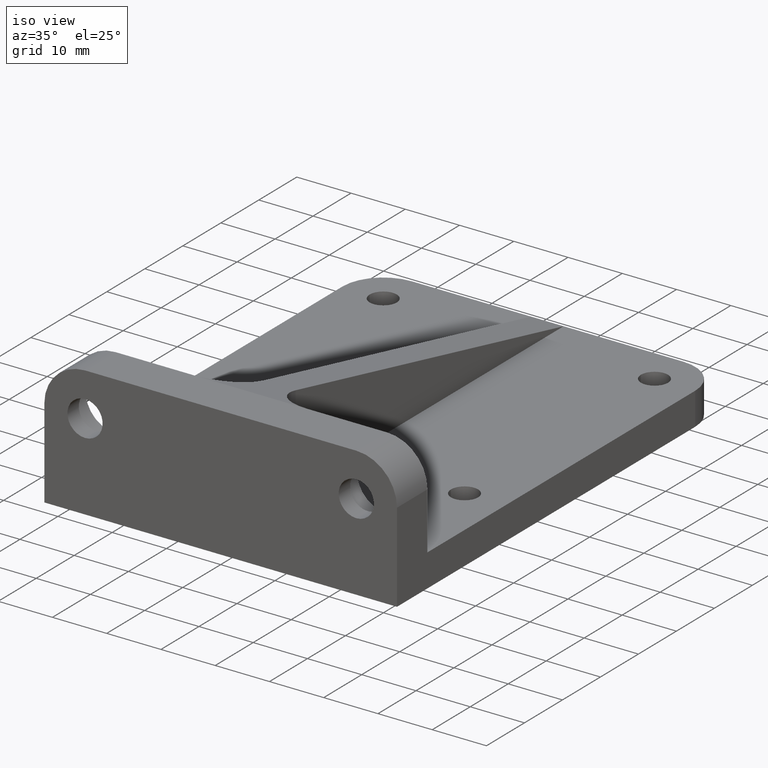
[diagram: clean part render]
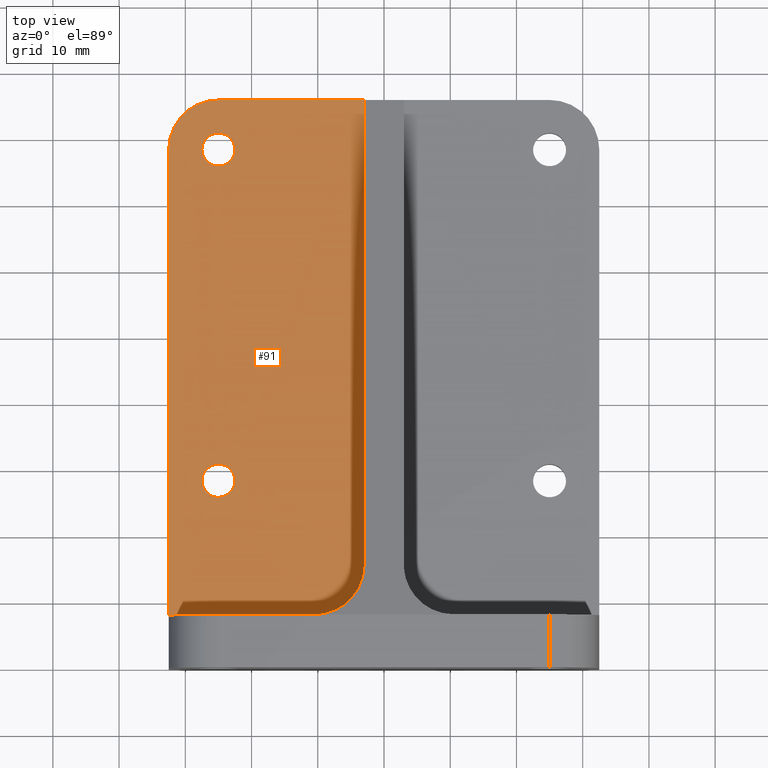
[diagram: tour spotlight — one face highlighted and labeled with its STEP entity id]
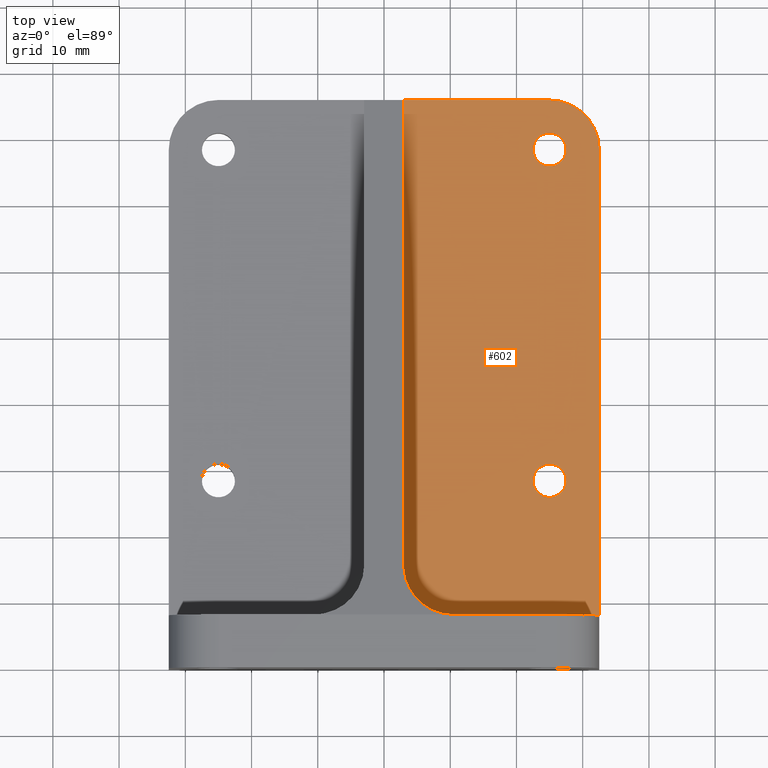
[diagram: tour spotlight — one face highlighted and labeled with its STEP entity id]
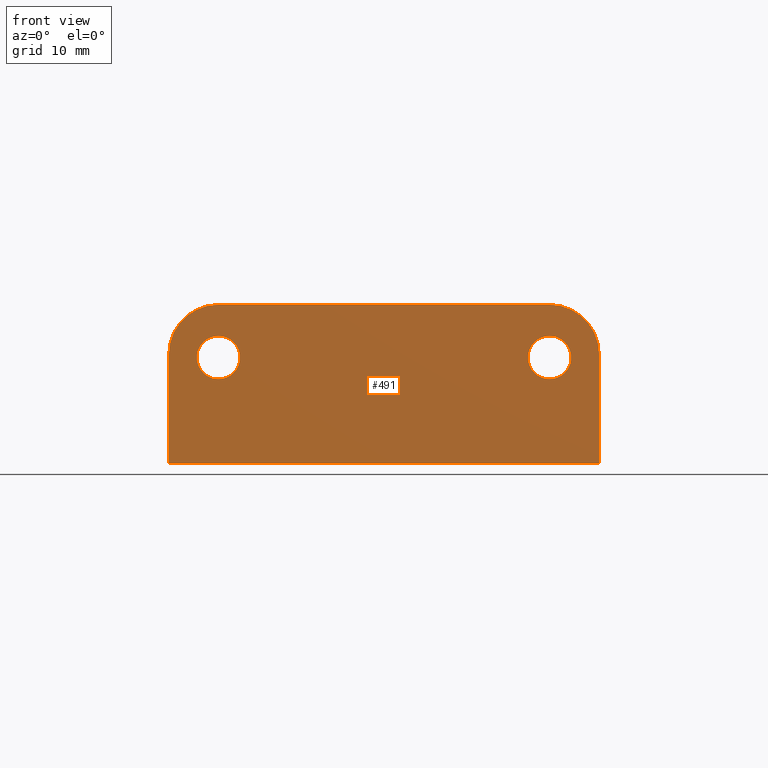
[diagram: tour spotlight — one face highlighted and labeled with its STEP entity id]
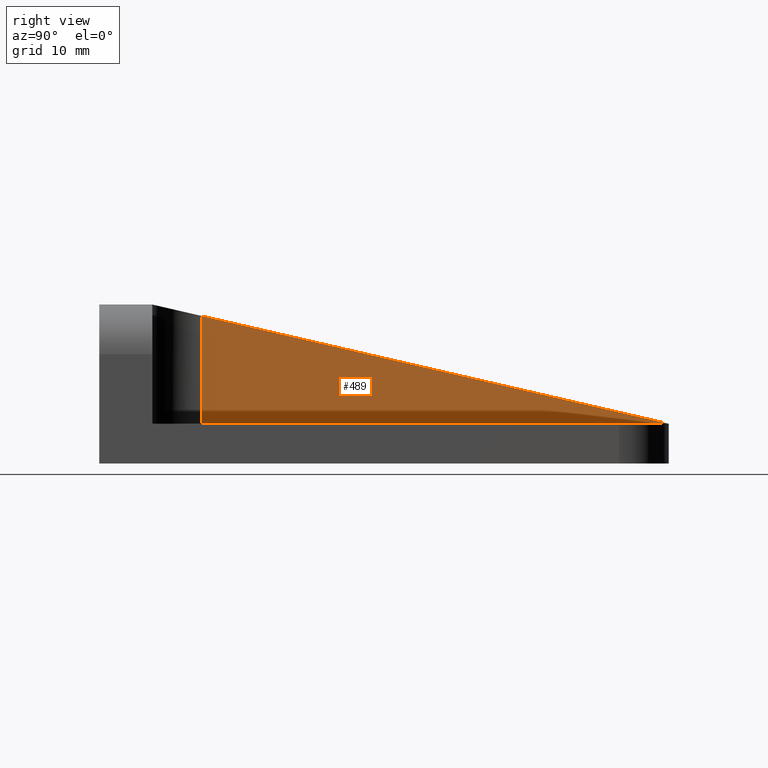
[diagram: tour spotlight — one face highlighted and labeled with its STEP entity id]
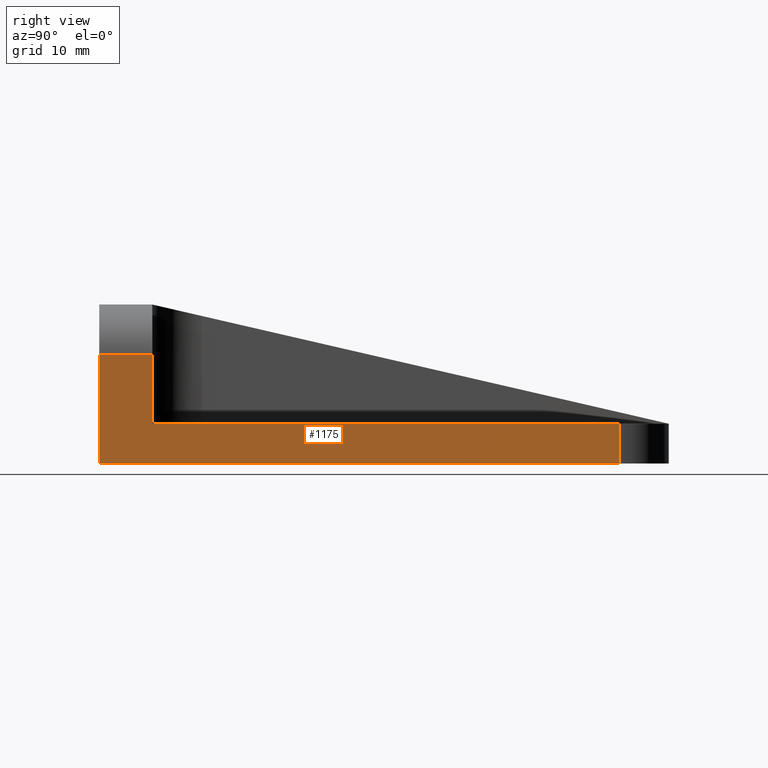
[diagram: tour spotlight — one face highlighted and labeled with its STEP entity id]
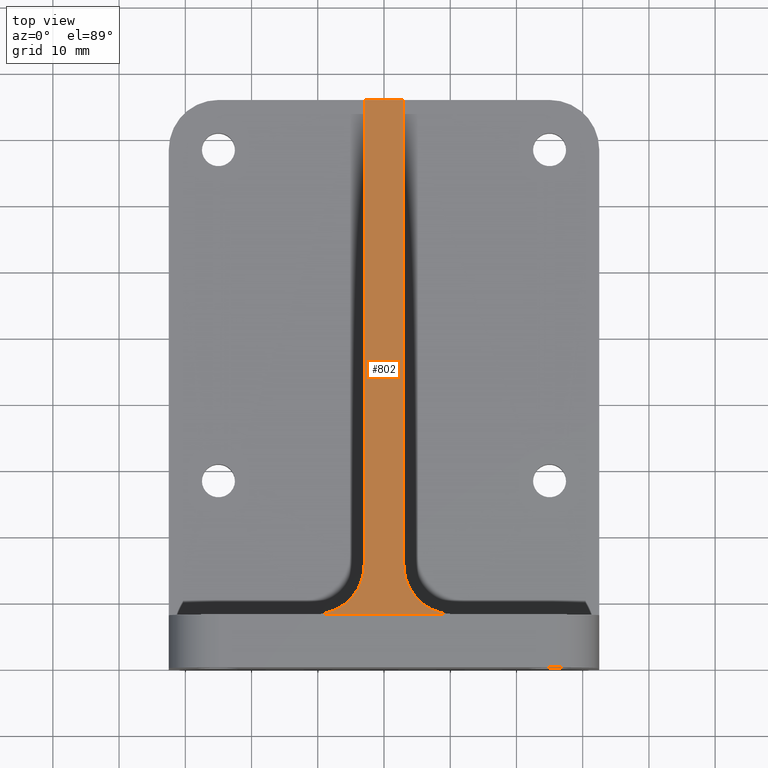
[diagram: tour spotlight — one face highlighted and labeled with its STEP entity id]
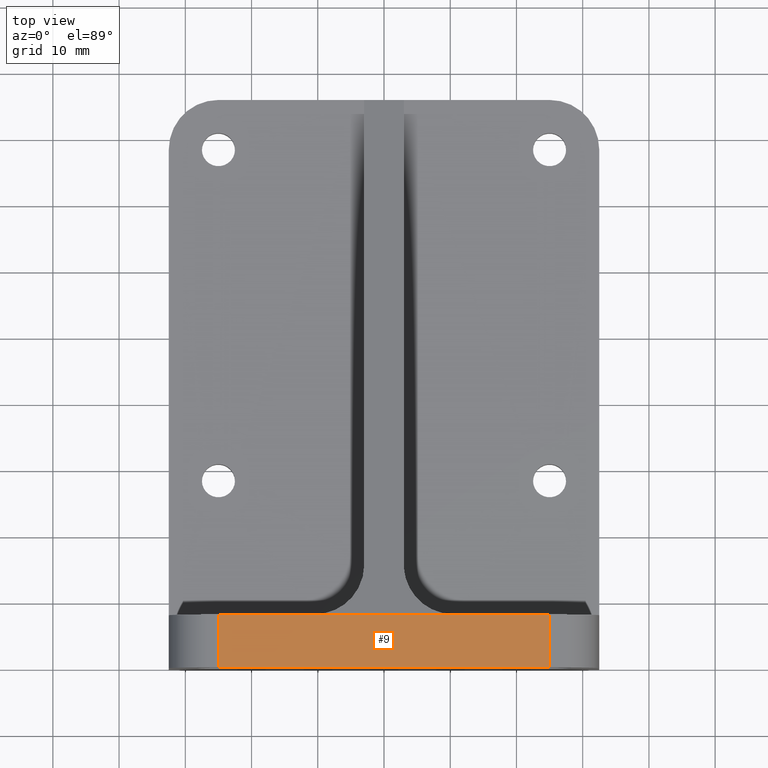
[diagram: tour spotlight — one face highlighted and labeled with its STEP entity id]
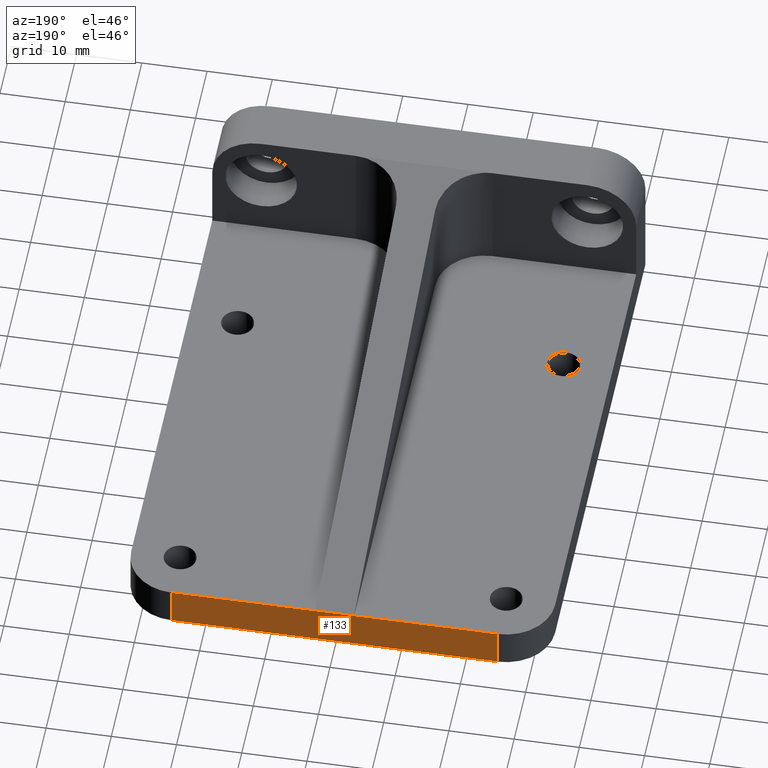
[diagram: tour spotlight — one face highlighted and labeled with its STEP entity id]
A machine part: a face-by-face anatomy tour. The part has 37 B-rep faces; the first image is the clean iso view, then the 8 largest visible faces are spotlighted one at a time (largest first), each with its STEP entity span.

Face 1 — top view, entity #91. In plain terms, the highlighted planar face has unit normal (0, 0, 1).
Definition (entity closure, byte-faithful):
#6 = AXIS2_PLACEMENT_3D ( 'NONE', #293, #345, #1047 ) ;
#8 = ORIENTED_EDGE ( 'NONE', *, *, #826, .F. ) ;
#18 = DIRECTION ( 'NONE',  ( 0.0000000000000000000, 0.0000000000000000000, 1.000000000000000000 ) ) ;
#40 = VERTEX_POINT ( 'NONE', #1151 ) ;
#48 = ORIENTED_EDGE ( 'NONE', *, *, #206, .F. ) ;
#72 = CARTESIAN_POINT ( 'NONE',  ( -32.50000000000000000, 7.999999999999996447, 6.000000000000005329 ) ) ;
#85 = EDGE_LOOP ( 'NONE', ( #8, #593, #1108, #831, #646, #760 ) ) ;
#88 = DIRECTION ( 'NONE',  ( -0.0000000000000000000, -0.0000000000000000000, 1.000000000000000000 ) ) ;
#91 = ADVANCED_FACE ( 'NONE', ( #1195, #612, #320 ), #995, .T. ) ;
#115 = CARTESIAN_POINT ( 'NONE',  ( -27.50000000000000000, 78.49999999999998579, 6.000000000000000000 ) ) ;
#131 = VERTEX_POINT ( 'NONE', #115 ) ;
#142 = CARTESIAN_POINT ( 'NONE',  ( -10.49999999999998934, 7.999999999999996447, 6.000000000000005329 ) ) ;
#148 = AXIS2_PLACEMENT_3D ( 'NONE', #577, #876, #1080 ) ;
#163 = AXIS2_PLACEMENT_3D ( 'NONE', #785, #1004, #608 ) ;
#172 = CARTESIAN_POINT ( 'NONE',  ( -2.999999999999988898, 7.999999999999996447, 6.000000000000005329 ) ) ;
#178 = DIRECTION ( 'NONE',  ( 1.000000000000000000, 0.0000000000000000000, 0.0000000000000000000 ) ) ;
#185 = CIRCLE ( 'NONE', #287, 7.500000000000000000 ) ;
#188 = CARTESIAN_POINT ( 'NONE',  ( -32.50000000000000000, 78.49999999999998579, 6.000000000000005329 ) ) ;
#206 = EDGE_CURVE ( 'NONE', #402, #891, #920, .T. ) ;
#245 = AXIS2_PLACEMENT_3D ( 'NONE', #495, #88, #178 ) ;
#246 = DIRECTION ( 'NONE',  ( 1.000000000000000000, 0.0000000000000000000, -0.0000000000000000000 ) ) ;
#266 = DIRECTION ( 'NONE',  ( 0.0000000000000000000, 1.000000000000000000, -0.0000000000000000000 ) ) ;
#279 = VERTEX_POINT ( 'NONE', #922 ) ;
#287 = AXIS2_PLACEMENT_3D ( 'NONE', #865, #18, #755 ) ;
#293 = CARTESIAN_POINT ( 'NONE',  ( -10.49999999999999112, 15.49999999999999645, 6.000000000000005329 ) ) ;
#295 = EDGE_LOOP ( 'NONE', ( #554, #1032 ) ) ;
#314 = VECTOR ( 'NONE', #266, 1000.000000000000000 ) ;
#320 = FACE_OUTER_BOUND ( 'NONE', #85, .T. ) ;
#345 = DIRECTION ( 'NONE',  ( 0.0000000000000000000, 0.0000000000000000000, 1.000000000000000000 ) ) ;
#352 = CARTESIAN_POINT ( 'NONE',  ( -32.50000000000000000, 86.00000000000000000, 6.000000000000005329 ) ) ;
#353 = LINE ( 'NONE', #72, #822 ) ;
#359 = AXIS2_PLACEMENT_3D ( 'NONE', #1033, #671, #1142 ) ;
#375 = EDGE_CURVE ( 'NONE', #891, #402, #562, .T. ) ;
#402 = VERTEX_POINT ( 'NONE', #833 ) ;
#417 = EDGE_CURVE ( 'NONE', #40, #131, #603, .T. ) ;
#447 = CARTESIAN_POINT ( 'NONE',  ( -25.00000000000000000, 86.00000000000000000, 6.000000000000005329 ) ) ;
#456 = VERTEX_POINT ( 'NONE', #447 ) ;
#479 = EDGE_CURVE ( 'NONE', #131, #40, #982, .T. ) ;
#483 = VERTEX_POINT ( 'NONE', #505 ) ;
#495 = CARTESIAN_POINT ( 'NONE',  ( -25.00000000000000000, 28.49999999999998224, 6.000000000000000000 ) ) ;
#505 = CARTESIAN_POINT ( 'NONE',  ( -2.999999999999991118, 15.49999999999999822, 6.000000000000005329 ) ) ;
#554 = ORIENTED_EDGE ( 'NONE', *, *, #417, .F. ) ;
#562 = CIRCLE ( 'NONE', #245, 2.499999999999998668 ) ;
#577 = CARTESIAN_POINT ( 'NONE',  ( -25.00000000000000000, 78.49999999999998579, 6.000000000000000000 ) ) ;
#590 = VERTEX_POINT ( 'NONE', #142 ) ;
#593 = ORIENTED_EDGE ( 'NONE', *, *, #765, .T. ) ;
#603 = CIRCLE ( 'NONE', #148, 2.499999999999998668 ) ;
#608 = DIRECTION ( 'NONE',  ( 1.000000000000000000, 0.0000000000000000000, 0.0000000000000000000 ) ) ;
#612 = FACE_BOUND ( 'NONE', #1158, .T. ) ;
#646 = ORIENTED_EDGE ( 'NONE', *, *, #988, .T. ) ;
#655 = VECTOR ( 'NONE', #1024, 1000.000000000000000 ) ;
#656 = LINE ( 'NONE', #172, #655 ) ;
#671 = DIRECTION ( 'NONE',  ( -0.0000000000000000000, -0.0000000000000000000, 1.000000000000000000 ) ) ;
#681 = CARTESIAN_POINT ( 'NONE',  ( -27.50000000000000000, 28.49999999999998224, 6.000000000000000000 ) ) ;
#710 = CIRCLE ( 'NONE', #6, 7.500000000000000000 ) ;
#755 = DIRECTION ( 'NONE',  ( 1.000000000000000000, 0.0000000000000000000, 0.0000000000000000000 ) ) ;
#760 = ORIENTED_EDGE ( 'NONE', *, *, #846, .F. ) ;
#765 = EDGE_CURVE ( 'NONE', #456, #771, #185, .T. ) ;
#771 = VERTEX_POINT ( 'NONE', #188 ) ;
#785 = CARTESIAN_POINT ( 'NONE',  ( -25.00000000000000000, 28.49999999999998224, 6.000000000000000000 ) ) ;
#816 = VERTEX_POINT ( 'NONE', #897 ) ;
#822 = VECTOR ( 'NONE', #1119, 1000.000000000000000 ) ;
#826 = EDGE_CURVE ( 'NONE', #456, #816, #1203, .T. ) ;
#831 = ORIENTED_EDGE ( 'NONE', *, *, #1037, .F. ) ;
#833 = CARTESIAN_POINT ( 'NONE',  ( -22.50000000000000355, 28.49999999999998224, 6.000000000000000000 ) ) ;
#846 = EDGE_CURVE ( 'NONE', #816, #483, #656, .T. ) ;
#865 = CARTESIAN_POINT ( 'NONE',  ( -25.00000000000000000, 78.49999999999998579, 6.000000000000000000 ) ) ;
#874 = CARTESIAN_POINT ( 'NONE',  ( 32.50000000000000000, 0.0000000000000000000, 6.000000000000000000 ) ) ;
#876 = DIRECTION ( 'NONE',  ( -0.0000000000000000000, -0.0000000000000000000, 1.000000000000000000 ) ) ;
#891 = VERTEX_POINT ( 'NONE', #681 ) ;
#897 = CARTESIAN_POINT ( 'NONE',  ( -3.000000000000012879, 86.00000000000000000, 6.000000000000005329 ) ) ;
#920 = CIRCLE ( 'NONE', #163, 2.499999999999998668 ) ;
#922 = CARTESIAN_POINT ( 'NONE',  ( -32.50000000000000000, 7.999999999999996447, 6.000000000000005329 ) ) ;
#958 = ORIENTED_EDGE ( 'NONE', *, *, #375, .F. ) ;
#974 = LINE ( 'NONE', #984, #314 ) ;
#982 = CIRCLE ( 'NONE', #359, 2.499999999999998668 ) ;
#984 = CARTESIAN_POINT ( 'NONE',  ( -32.50000000000000000, 7.999999999999996447, 6.000000000000005329 ) ) ;
#988 = EDGE_CURVE ( 'NONE', #590, #483, #710, .T. ) ;
#995 = PLANE ( 'NONE',  #1000 ) ;
#1000 = AXIS2_PLACEMENT_3D ( 'NONE', #874, #1067, #1176 ) ;
#1004 = DIRECTION ( 'NONE',  ( -0.0000000000000000000, -0.0000000000000000000, 1.000000000000000000 ) ) ;
#1024 = DIRECTION ( 'NONE',  ( 3.113606238932730467E-16, -1.000000000000000000, 0.0000000000000000000 ) ) ;
#1032 = ORIENTED_EDGE ( 'NONE', *, *, #479, .F. ) ;
#1033 = CARTESIAN_POINT ( 'NONE',  ( -25.00000000000000000, 78.49999999999998579, 6.000000000000000000 ) ) ;
#1037 = EDGE_CURVE ( 'NONE', #590, #279, #353, .T. ) ;
#1047 = DIRECTION ( 'NONE',  ( 1.000000000000000000, 0.0000000000000000000, 0.0000000000000000000 ) ) ;
#1067 = DIRECTION ( 'NONE',  ( 0.0000000000000000000, 0.0000000000000000000, 1.000000000000000000 ) ) ;
#1073 = EDGE_CURVE ( 'NONE', #279, #771, #974, .T. ) ;
#1080 = DIRECTION ( 'NONE',  ( 1.000000000000000000, 0.0000000000000000000, 0.0000000000000000000 ) ) ;
#1108 = ORIENTED_EDGE ( 'NONE', *, *, #1073, .F. ) ;
#1119 = DIRECTION ( 'NONE',  ( -1.000000000000000000, 0.0000000000000000000, 0.0000000000000000000 ) ) ;
#1142 = DIRECTION ( 'NONE',  ( 1.000000000000000000, 0.0000000000000000000, 0.0000000000000000000 ) ) ;
#1151 = CARTESIAN_POINT ( 'NONE',  ( -22.50000000000000355, 78.49999999999998579, 6.000000000000000000 ) ) ;
#1158 = EDGE_LOOP ( 'NONE', ( #48, #958 ) ) ;
#1176 = DIRECTION ( 'NONE',  ( 1.000000000000000000, 0.0000000000000000000, -0.0000000000000000000 ) ) ;
#1195 = FACE_BOUND ( 'NONE', #295, .T. ) ;
#1203 = LINE ( 'NONE', #352, #1235 ) ;
#1235 = VECTOR ( 'NONE', #246, 1000.000000000000000 ) ;

Face 2 — top view, entity #602. In plain terms, the highlighted planar face has unit normal (0, 0, 1).
Definition (entity closure, byte-faithful):
#14 = FACE_BOUND ( 'NONE', #1071, .T. ) ;
#27 = FACE_OUTER_BOUND ( 'NONE', #260, .T. ) ;
#28 = AXIS2_PLACEMENT_3D ( 'NONE', #434, #1048, #1076 ) ;
#32 = LINE ( 'NONE', #1068, #121 ) ;
#33 = AXIS2_PLACEMENT_3D ( 'NONE', #234, #635, #873 ) ;
#34 = ORIENTED_EDGE ( 'NONE', *, *, #187, .F. ) ;
#65 = VERTEX_POINT ( 'NONE', #1101 ) ;
#86 = CARTESIAN_POINT ( 'NONE',  ( 3.000000000000007994, 86.00000000000000000, 6.000000000000005329 ) ) ;
#92 = ORIENTED_EDGE ( 'NONE', *, *, #240, .T. ) ;
#110 = DIRECTION ( 'NONE',  ( -1.000000000000000000, 0.0000000000000000000, 0.0000000000000000000 ) ) ;
#121 = VECTOR ( 'NONE', #978, 1000.000000000000000 ) ;
#158 = VERTEX_POINT ( 'NONE', #712 ) ;
#169 = DIRECTION ( 'NONE',  ( 0.0000000000000000000, 0.0000000000000000000, 1.000000000000000000 ) ) ;
#187 = EDGE_CURVE ( 'NONE', #579, #158, #418, .T. ) ;
#193 = EDGE_CURVE ( 'NONE', #1046, #1228, #32, .T. ) ;
#204 = CARTESIAN_POINT ( 'NONE',  ( 32.50000000000000000, 7.999999999999996447, 6.000000000000005329 ) ) ;
#210 = CARTESIAN_POINT ( 'NONE',  ( 3.000000000000007994, 7.999999999999996447, 6.000000000000005329 ) ) ;
#211 = VERTEX_POINT ( 'NONE', #1177 ) ;
#224 = EDGE_CURVE ( 'NONE', #158, #211, #810, .T. ) ;
#226 = EDGE_CURVE ( 'NONE', #416, #1228, #909, .T. ) ;
#234 = CARTESIAN_POINT ( 'NONE',  ( 10.50000000000000888, 15.49999999999999645, 6.000000000000005329 ) ) ;
#240 = EDGE_CURVE ( 'NONE', #579, #1046, #310, .T. ) ;
#260 = EDGE_LOOP ( 'NONE', ( #34, #92, #766, #924, #808, #949 ) ) ;
#267 = CIRCLE ( 'NONE', #1020, 2.499999999999998668 ) ;
#306 = EDGE_CURVE ( 'NONE', #416, #211, #821, .T. ) ;
#310 = CIRCLE ( 'NONE', #583, 7.500000000000000000 ) ;
#321 = DIRECTION ( 'NONE',  ( -0.0000000000000000000, -1.000000000000000000, 0.0000000000000000000 ) ) ;
#371 = EDGE_CURVE ( 'NONE', #65, #1132, #542, .T. ) ;
#381 = VECTOR ( 'NONE', #321, 1000.000000000000000 ) ;
#383 = VECTOR ( 'NONE', #110, 1000.000000000000000 ) ;
#416 = VERTEX_POINT ( 'NONE', #1229 ) ;
#418 = LINE ( 'NONE', #204, #381 ) ;
#434 = CARTESIAN_POINT ( 'NONE',  ( 32.50000000000000000, 0.0000000000000000000, 6.000000000000000000 ) ) ;
#451 = CARTESIAN_POINT ( 'NONE',  ( 25.00000000000001421, 28.49999999999998934, 6.000000000000000000 ) ) ;
#503 = DIRECTION ( 'NONE',  ( 0.0000000000000000000, 1.000000000000000000, -0.0000000000000000000 ) ) ;
#518 = CARTESIAN_POINT ( 'NONE',  ( 32.50000000000000000, 7.999999999999996447, 6.000000000000005329 ) ) ;
#519 = ORIENTED_EDGE ( 'NONE', *, *, #371, .F. ) ;
#535 = VERTEX_POINT ( 'NONE', #805 ) ;
#542 = CIRCLE ( 'NONE', #690, 2.499999999999998668 ) ;
#560 = AXIS2_PLACEMENT_3D ( 'NONE', #860, #684, #605 ) ;
#572 = CARTESIAN_POINT ( 'NONE',  ( 25.00000000000000000, 78.49999999999998579, 6.000000000000000000 ) ) ;
#579 = VERTEX_POINT ( 'NONE', #1029 ) ;
#583 = AXIS2_PLACEMENT_3D ( 'NONE', #572, #169, #727 ) ;
#602 = ADVANCED_FACE ( 'NONE', ( #1182, #14, #27 ), #1169, .T. ) ;
#605 = DIRECTION ( 'NONE',  ( 1.000000000000000000, 0.0000000000000000000, 0.0000000000000000000 ) ) ;
#628 = DIRECTION ( 'NONE',  ( -0.0000000000000000000, -0.0000000000000000000, 1.000000000000000000 ) ) ;
#635 = DIRECTION ( 'NONE',  ( 0.0000000000000000000, 0.0000000000000000000, 1.000000000000000000 ) ) ;
#647 = CARTESIAN_POINT ( 'NONE',  ( 22.50000000000001776, 28.49999999999998934, 6.000000000000000000 ) ) ;
#662 = DIRECTION ( 'NONE',  ( 1.000000000000000000, 0.0000000000000000000, 0.0000000000000000000 ) ) ;
#676 = DIRECTION ( 'NONE',  ( 1.000000000000000000, 0.0000000000000000000, 0.0000000000000000000 ) ) ;
#684 = DIRECTION ( 'NONE',  ( -0.0000000000000000000, -0.0000000000000000000, 1.000000000000000000 ) ) ;
#690 = AXIS2_PLACEMENT_3D ( 'NONE', #966, #1154, #676 ) ;
#712 = CARTESIAN_POINT ( 'NONE',  ( 32.50000000000000000, 7.999999999999996447, 6.000000000000000000 ) ) ;
#719 = EDGE_CURVE ( 'NONE', #1011, #535, #1170, .T. ) ;
#727 = DIRECTION ( 'NONE',  ( 1.000000000000000000, 0.0000000000000000000, 0.0000000000000000000 ) ) ;
#743 = CIRCLE ( 'NONE', #1172, 2.499999999999998668 ) ;
#744 = CARTESIAN_POINT ( 'NONE',  ( 25.00000000000000000, 78.49999999999998579, 6.000000000000000000 ) ) ;
#766 = ORIENTED_EDGE ( 'NONE', *, *, #193, .T. ) ;
#786 = ORIENTED_EDGE ( 'NONE', *, *, #985, .F. ) ;
#805 = CARTESIAN_POINT ( 'NONE',  ( 27.50000000000000000, 78.49999999999998579, 6.000000000000000000 ) ) ;
#807 = DIRECTION ( 'NONE',  ( 1.000000000000000000, 0.0000000000000000000, 0.0000000000000000000 ) ) ;
#808 = ORIENTED_EDGE ( 'NONE', *, *, #306, .T. ) ;
#810 = LINE ( 'NONE', #518, #383 ) ;
#821 = CIRCLE ( 'NONE', #33, 7.500000000000000000 ) ;
#860 = CARTESIAN_POINT ( 'NONE',  ( 25.00000000000000000, 78.49999999999998579, 6.000000000000000000 ) ) ;
#867 = EDGE_CURVE ( 'NONE', #535, #1011, #743, .T. ) ;
#873 = DIRECTION ( 'NONE',  ( 1.000000000000000000, 0.0000000000000000000, 0.0000000000000000000 ) ) ;
#909 = LINE ( 'NONE', #210, #1149 ) ;
#924 = ORIENTED_EDGE ( 'NONE', *, *, #226, .F. ) ;
#937 = ORIENTED_EDGE ( 'NONE', *, *, #719, .F. ) ;
#949 = ORIENTED_EDGE ( 'NONE', *, *, #224, .F. ) ;
#966 = CARTESIAN_POINT ( 'NONE',  ( 25.00000000000001421, 28.49999999999998934, 6.000000000000000000 ) ) ;
#978 = DIRECTION ( 'NONE',  ( -1.000000000000000000, -0.0000000000000000000, -0.0000000000000000000 ) ) ;
#981 = CARTESIAN_POINT ( 'NONE',  ( 22.50000000000000355, 78.49999999999998579, 6.000000000000000000 ) ) ;
#985 = EDGE_CURVE ( 'NONE', #1132, #65, #267, .T. ) ;
#1006 = EDGE_LOOP ( 'NONE', ( #519, #786 ) ) ;
#1011 = VERTEX_POINT ( 'NONE', #981 ) ;
#1020 = AXIS2_PLACEMENT_3D ( 'NONE', #451, #628, #807 ) ;
#1029 = CARTESIAN_POINT ( 'NONE',  ( 32.50000000000000000, 78.49999999999998579, 6.000000000000005329 ) ) ;
#1046 = VERTEX_POINT ( 'NONE', #1226 ) ;
#1048 = DIRECTION ( 'NONE',  ( 0.0000000000000000000, 0.0000000000000000000, 1.000000000000000000 ) ) ;
#1068 = CARTESIAN_POINT ( 'NONE',  ( 32.50000000000000000, 86.00000000000000000, 6.000000000000000000 ) ) ;
#1071 = EDGE_LOOP ( 'NONE', ( #1165, #937 ) ) ;
#1076 = DIRECTION ( 'NONE',  ( 1.000000000000000000, 0.0000000000000000000, -0.0000000000000000000 ) ) ;
#1101 = CARTESIAN_POINT ( 'NONE',  ( 27.50000000000001421, 28.49999999999998934, 6.000000000000000000 ) ) ;
#1132 = VERTEX_POINT ( 'NONE', #647 ) ;
#1133 = DIRECTION ( 'NONE',  ( -0.0000000000000000000, -0.0000000000000000000, 1.000000000000000000 ) ) ;
#1149 = VECTOR ( 'NONE', #503, 1000.000000000000000 ) ;
#1154 = DIRECTION ( 'NONE',  ( -0.0000000000000000000, -0.0000000000000000000, 1.000000000000000000 ) ) ;
#1165 = ORIENTED_EDGE ( 'NONE', *, *, #867, .F. ) ;
#1169 = PLANE ( 'NONE',  #28 ) ;
#1170 = CIRCLE ( 'NONE', #560, 2.499999999999998668 ) ;
#1172 = AXIS2_PLACEMENT_3D ( 'NONE', #744, #1133, #662 ) ;
#1177 = CARTESIAN_POINT ( 'NONE',  ( 10.50000000000000888, 7.999999999999996447, 6.000000000000005329 ) ) ;
#1182 = FACE_BOUND ( 'NONE', #1006, .T. ) ;
#1226 = CARTESIAN_POINT ( 'NONE',  ( 25.00000000000000000, 86.00000000000000000, 6.000000000000000000 ) ) ;
#1228 = VERTEX_POINT ( 'NONE', #86 ) ;
#1229 = CARTESIAN_POINT ( 'NONE',  ( 3.000000000000007994, 15.49999999999999645, 6.000000000000005329 ) ) ;

Face 3 — front view, entity #491. In plain terms, the highlighted planar face has unit normal (-0, 1, 0).
Definition (entity closure, byte-faithful):
#31 = AXIS2_PLACEMENT_3D ( 'NONE', #830, #1010, #734 ) ;
#58 = CARTESIAN_POINT ( 'NONE',  ( 32.50000000000000000, 0.0000000000000000000, 0.0000000000000000000 ) ) ;
#63 = VECTOR ( 'NONE', #870, 1000.000000000000000 ) ;
#64 = LINE ( 'NONE', #473, #309 ) ;
#77 = LINE ( 'NONE', #762, #881 ) ;
#81 = AXIS2_PLACEMENT_3D ( 'NONE', #1065, #341, #1099 ) ;
#97 = DIRECTION ( 'NONE',  ( -1.000000000000000000, -0.0000000000000000000, -0.0000000000000000000 ) ) ;
#155 = EDGE_CURVE ( 'NONE', #198, #663, #219, .T. ) ;
#170 = EDGE_LOOP ( 'NONE', ( #697, #871 ) ) ;
#175 = EDGE_CURVE ( 'NONE', #673, #791, #441, .T. ) ;
#198 = VERTEX_POINT ( 'NONE', #454 ) ;
#199 = VECTOR ( 'NONE', #1186, 1000.000000000000000 ) ;
#219 = LINE ( 'NONE', #795, #199 ) ;
#221 = CIRCLE ( 'NONE', #1084, 3.249999999999999556 ) ;
#231 = FACE_OUTER_BOUND ( 'NONE', #1091, .T. ) ;
#232 = DIRECTION ( 'NONE',  ( 0.0000000000000000000, -1.224646799147352961E-16, 1.000000000000000000 ) ) ;
#256 = VERTEX_POINT ( 'NONE', #58 ) ;
#258 = ORIENTED_EDGE ( 'NONE', *, *, #476, .T. ) ;
#262 = DIRECTION ( 'NONE',  ( -0.0000000000000000000, 1.000000000000000000, 1.224646799147353207E-16 ) ) ;
#263 = VERTEX_POINT ( 'NONE', #928 ) ;
#272 = EDGE_CURVE ( 'NONE', #1214, #1064, #1104, .T. ) ;
#302 = LINE ( 'NONE', #674, #63 ) ;
#309 = VECTOR ( 'NONE', #1120, 1000.000000000000000 ) ;
#315 = DIRECTION ( 'NONE',  ( 0.0000000000000000000, -1.224646799147352961E-16, 1.000000000000000000 ) ) ;
#316 = DIRECTION ( 'NONE',  ( 0.0000000000000000000, -1.224646799147352961E-16, 1.000000000000000000 ) ) ;
#341 = DIRECTION ( 'NONE',  ( 0.0000000000000000000, -1.000000000000000000, -1.224646799147353207E-16 ) ) ;
#351 = ORIENTED_EDGE ( 'NONE', *, *, #933, .T. ) ;
#366 = CARTESIAN_POINT ( 'NONE',  ( -24.99999999999999645, -1.734723475976807094E-15, 16.00000000000000000 ) ) ;
#373 = EDGE_LOOP ( 'NONE', ( #351, #824 ) ) ;
#380 = ORIENTED_EDGE ( 'NONE', *, *, #514, .F. ) ;
#422 = EDGE_CURVE ( 'NONE', #660, #1124, #941, .T. ) ;
#423 = ORIENTED_EDGE ( 'NONE', *, *, #175, .T. ) ;
#441 = CIRCLE ( 'NONE', #1078, 7.500000000000000000 ) ;
#454 = CARTESIAN_POINT ( 'NONE',  ( -32.50000000000000000, -2.020667218593133100E-15, 16.50000000000000000 ) ) ;
#473 = CARTESIAN_POINT ( 'NONE',  ( 32.50000000000000000, 0.0000000000000000000, 0.0000000000000000000 ) ) ;
#476 = EDGE_CURVE ( 'NONE', #791, #263, #77, .T. ) ;
#478 = FACE_BOUND ( 'NONE', #170, .T. ) ;
#491 = ADVANCED_FACE ( 'NONE', ( #478, #731, #231 ), #1112, .F. ) ;
#514 = EDGE_CURVE ( 'NONE', #673, #256, #302, .T. ) ;
#536 = DIRECTION ( 'NONE',  ( -0.0000000000000000000, 1.000000000000000000, 1.224646799147353207E-16 ) ) ;
#553 = DIRECTION ( 'NONE',  ( -0.0000000000000000000, 1.000000000000000000, 1.224646799147353207E-16 ) ) ;
#651 = CARTESIAN_POINT ( 'NONE',  ( 32.50000000000000000, -2.020667218593133100E-15, 16.50000000000000000 ) ) ;
#652 = ORIENTED_EDGE ( 'NONE', *, *, #1187, .T. ) ;
#660 = VERTEX_POINT ( 'NONE', #1236 ) ;
#663 = VERTEX_POINT ( 'NONE', #1148 ) ;
#673 = VERTEX_POINT ( 'NONE', #651 ) ;
#674 = CARTESIAN_POINT ( 'NONE',  ( 32.50000000000000000, 0.0000000000000000000, 0.0000000000000000000 ) ) ;
#689 = CIRCLE ( 'NONE', #839, 3.249999999999999556 ) ;
#697 = ORIENTED_EDGE ( 'NONE', *, *, #422, .T. ) ;
#698 = EDGE_CURVE ( 'NONE', #256, #663, #64, .T. ) ;
#714 = ORIENTED_EDGE ( 'NONE', *, *, #155, .T. ) ;
#729 = AXIS2_PLACEMENT_3D ( 'NONE', #987, #863, #316 ) ;
#731 = FACE_BOUND ( 'NONE', #373, .T. ) ;
#734 = DIRECTION ( 'NONE',  ( 0.0000000000000000000, -1.224646799147352961E-16, 1.000000000000000000 ) ) ;
#738 = DIRECTION ( 'NONE',  ( 0.0000000000000000000, -1.224646799147353207E-16, 1.000000000000000000 ) ) ;
#759 = AXIS2_PLACEMENT_3D ( 'NONE', #1103, #553, #738 ) ;
#762 = CARTESIAN_POINT ( 'NONE',  ( 32.50000000000000000, -2.939152317953647894E-15, 24.00000000000000000 ) ) ;
#764 = CARTESIAN_POINT ( 'NONE',  ( 25.00000000000000355, -2.132733685699696720E-15, 19.24999999999999289 ) ) ;
#791 = VERTEX_POINT ( 'NONE', #1060 ) ;
#795 = CARTESIAN_POINT ( 'NONE',  ( -32.50000000000000000, 0.0000000000000000000, 0.0000000000000000000 ) ) ;
#824 = ORIENTED_EDGE ( 'NONE', *, *, #272, .T. ) ;
#830 = CARTESIAN_POINT ( 'NONE',  ( 25.00000000000000355, -1.734723475976807094E-15, 15.99999999999999289 ) ) ;
#838 = EDGE_CURVE ( 'NONE', #1124, #660, #221, .T. ) ;
#839 = AXIS2_PLACEMENT_3D ( 'NONE', #1185, #536, #232 ) ;
#863 = DIRECTION ( 'NONE',  ( -0.0000000000000000000, 1.000000000000000000, 1.224646799147353207E-16 ) ) ;
#870 = DIRECTION ( 'NONE',  ( -0.0000000000000000000, 1.224646799147353207E-16, -1.000000000000000000 ) ) ;
#871 = ORIENTED_EDGE ( 'NONE', *, *, #838, .T. ) ;
#881 = VECTOR ( 'NONE', #97, 1000.000000000000000 ) ;
#928 = CARTESIAN_POINT ( 'NONE',  ( -25.00000000000000000, -2.939152317953647894E-15, 24.00000000000000000 ) ) ;
#929 = ORIENTED_EDGE ( 'NONE', *, *, #698, .F. ) ;
#933 = EDGE_CURVE ( 'NONE', #1064, #1214, #689, .T. ) ;
#941 = CIRCLE ( 'NONE', #729, 3.249999999999999556 ) ;
#987 = CARTESIAN_POINT ( 'NONE',  ( -24.99999999999999645, -1.734723475976807094E-15, 16.00000000000000000 ) ) ;
#1010 = DIRECTION ( 'NONE',  ( -0.0000000000000000000, 1.000000000000000000, 1.224646799147353207E-16 ) ) ;
#1060 = CARTESIAN_POINT ( 'NONE',  ( 25.00000000000000000, -2.939152317953647894E-15, 24.00000000000000000 ) ) ;
#1064 = VERTEX_POINT ( 'NONE', #764 ) ;
#1065 = CARTESIAN_POINT ( 'NONE',  ( -25.00000000000000000, -2.020667218593133100E-15, 16.50000000000000000 ) ) ;
#1075 = CARTESIAN_POINT ( 'NONE',  ( 25.00000000000000355, -1.336713266253917468E-15, 12.74999999999999467 ) ) ;
#1078 = AXIS2_PLACEMENT_3D ( 'NONE', #1088, #1166, #315 ) ;
#1084 = AXIS2_PLACEMENT_3D ( 'NONE', #366, #262, #1208 ) ;
#1088 = CARTESIAN_POINT ( 'NONE',  ( 25.00000000000000000, -2.020667218593133100E-15, 16.50000000000000000 ) ) ;
#1091 = EDGE_LOOP ( 'NONE', ( #380, #423, #258, #652, #714, #929 ) ) ;
#1099 = DIRECTION ( 'NONE',  ( 0.0000000000000000000, -1.224646799147352961E-16, 1.000000000000000000 ) ) ;
#1103 = CARTESIAN_POINT ( 'NONE',  ( 32.50000000000000000, 0.0000000000000000000, 0.0000000000000000000 ) ) ;
#1104 = CIRCLE ( 'NONE', #31, 3.249999999999999556 ) ;
#1105 = CARTESIAN_POINT ( 'NONE',  ( -24.99999999999999645, -1.336713266253917468E-15, 12.75000000000000178 ) ) ;
#1112 = PLANE ( 'NONE',  #759 ) ;
#1120 = DIRECTION ( 'NONE',  ( -1.000000000000000000, -0.0000000000000000000, -0.0000000000000000000 ) ) ;
#1124 = VERTEX_POINT ( 'NONE', #1105 ) ;
#1148 = CARTESIAN_POINT ( 'NONE',  ( -32.50000000000000000, 0.0000000000000000000, 0.0000000000000000000 ) ) ;
#1166 = DIRECTION ( 'NONE',  ( 0.0000000000000000000, -1.000000000000000000, -1.224646799147353207E-16 ) ) ;
#1185 = CARTESIAN_POINT ( 'NONE',  ( 25.00000000000000355, -1.734723475976807094E-15, 15.99999999999999289 ) ) ;
#1186 = DIRECTION ( 'NONE',  ( -0.0000000000000000000, 1.224646799147353207E-16, -1.000000000000000000 ) ) ;
#1187 = EDGE_CURVE ( 'NONE', #263, #198, #1238, .T. ) ;
#1208 = DIRECTION ( 'NONE',  ( 0.0000000000000000000, -1.224646799147352961E-16, 1.000000000000000000 ) ) ;
#1214 = VERTEX_POINT ( 'NONE', #1075 ) ;
#1236 = CARTESIAN_POINT ( 'NONE',  ( -24.99999999999999645, -2.132733685699696720E-15, 19.25000000000000000 ) ) ;
#1238 = CIRCLE ( 'NONE', #81, 7.500000000000000000 ) ;

Face 4 — right view, entity #489. In plain terms, the highlighted planar face has unit normal (-1, 0, 0).
Definition (entity closure, byte-faithful):
#76 = VERTEX_POINT ( 'NONE', #618 ) ;
#86 = CARTESIAN_POINT ( 'NONE',  ( 3.000000000000007994, 86.00000000000000000, 6.000000000000005329 ) ) ;
#140 = CARTESIAN_POINT ( 'NONE',  ( 3.000000000000007994, 15.49999999999999645, 6.000000000000005329 ) ) ;
#210 = CARTESIAN_POINT ( 'NONE',  ( 3.000000000000007994, 7.999999999999996447, 6.000000000000005329 ) ) ;
#226 = EDGE_CURVE ( 'NONE', #416, #1228, #909, .T. ) ;
#233 = CARTESIAN_POINT ( 'NONE',  ( 3.000000000000009770, 86.00000000000000000, 6.000000000000000000 ) ) ;
#274 = DIRECTION ( 'NONE',  ( -1.000000000000000000, 0.0000000000000000000, 0.0000000000000000000 ) ) ;
#304 = ORIENTED_EDGE ( 'NONE', *, *, #226, .T. ) ;
#365 = EDGE_LOOP ( 'NONE', ( #528, #1246, #304 ) ) ;
#379 = EDGE_CURVE ( 'NONE', #76, #416, #526, .T. ) ;
#385 = CARTESIAN_POINT ( 'NONE',  ( 3.000000000000007994, 7.999999999999996447, -83.39214591314942027 ) ) ;
#416 = VERTEX_POINT ( 'NONE', #1229 ) ;
#452 = DIRECTION ( 'NONE',  ( 0.0000000000000000000, 0.9743911956946198494, -0.2248595066987584823 ) ) ;
#489 = ADVANCED_FACE ( 'NONE', ( #1039 ), #1234, .F. ) ;
#503 = DIRECTION ( 'NONE',  ( 0.0000000000000000000, 1.000000000000000000, -0.0000000000000000000 ) ) ;
#526 = LINE ( 'NONE', #140, #1150 ) ;
#528 = ORIENTED_EDGE ( 'NONE', *, *, #730, .F. ) ;
#618 = CARTESIAN_POINT ( 'NONE',  ( 3.000000000000009770, 15.49999999999998579, 22.26923076923077716 ) ) ;
#620 = DIRECTION ( 'NONE',  ( 0.0000000000000000000, 0.0000000000000000000, 1.000000000000000000 ) ) ;
#623 = AXIS2_PLACEMENT_3D ( 'NONE', #385, #274, #620 ) ;
#730 = EDGE_CURVE ( 'NONE', #76, #1228, #1093, .T. ) ;
#872 = DIRECTION ( 'NONE',  ( -0.0000000000000000000, 0.0000000000000000000, -1.000000000000000000 ) ) ;
#909 = LINE ( 'NONE', #210, #1149 ) ;
#1039 = FACE_OUTER_BOUND ( 'NONE', #365, .T. ) ;
#1093 = LINE ( 'NONE', #233, #1189 ) ;
#1149 = VECTOR ( 'NONE', #503, 1000.000000000000000 ) ;
#1150 = VECTOR ( 'NONE', #872, 1000.000000000000000 ) ;
#1189 = VECTOR ( 'NONE', #452, 1000.000000000000114 ) ;
#1228 = VERTEX_POINT ( 'NONE', #86 ) ;
#1229 = CARTESIAN_POINT ( 'NONE',  ( 3.000000000000007994, 15.49999999999999645, 6.000000000000005329 ) ) ;
#1234 = PLANE ( 'NONE',  #623 ) ;
#1246 = ORIENTED_EDGE ( 'NONE', *, *, #379, .T. ) ;

Face 5 — right view, entity #1175. In plain terms, the highlighted planar face has unit normal (-1, 0, 0).
Definition (entity closure, byte-faithful):
#17 = ORIENTED_EDGE ( 'NONE', *, *, #716, .T. ) ;
#26 = CARTESIAN_POINT ( 'NONE',  ( 32.50000000000000000, 0.0000000000000000000, 0.0000000000000000000 ) ) ;
#37 = LINE ( 'NONE', #672, #486 ) ;
#58 = CARTESIAN_POINT ( 'NONE',  ( 32.50000000000000000, 0.0000000000000000000, 0.0000000000000000000 ) ) ;
#63 = VECTOR ( 'NONE', #870, 1000.000000000000000 ) ;
#90 = DIRECTION ( 'NONE',  ( 0.0000000000000000000, 1.000000000000000000, 0.0000000000000000000 ) ) ;
#105 = DIRECTION ( 'NONE',  ( 0.0000000000000000000, 0.0000000000000000000, 1.000000000000000000 ) ) ;
#125 = FACE_OUTER_BOUND ( 'NONE', #828, .T. ) ;
#128 = DIRECTION ( 'NONE',  ( 0.0000000000000000000, 0.0000000000000000000, 1.000000000000000000 ) ) ;
#139 = VERTEX_POINT ( 'NONE', #144 ) ;
#144 = CARTESIAN_POINT ( 'NONE',  ( 32.50000000000000000, 7.999999999999996447, 16.50000000000000000 ) ) ;
#158 = VERTEX_POINT ( 'NONE', #712 ) ;
#164 = VECTOR ( 'NONE', #105, 1000.000000000000000 ) ;
#180 = LINE ( 'NONE', #669, #164 ) ;
#187 = EDGE_CURVE ( 'NONE', #579, #158, #418, .T. ) ;
#190 = DIRECTION ( 'NONE',  ( -0.0000000000000000000, -0.0000000000000000000, 1.000000000000000000 ) ) ;
#203 = AXIS2_PLACEMENT_3D ( 'NONE', #26, #640, #128 ) ;
#204 = CARTESIAN_POINT ( 'NONE',  ( 32.50000000000000000, 7.999999999999996447, 6.000000000000005329 ) ) ;
#256 = VERTEX_POINT ( 'NONE', #58 ) ;
#302 = LINE ( 'NONE', #674, #63 ) ;
#312 = VECTOR ( 'NONE', #391, 1000.000000000000000 ) ;
#321 = DIRECTION ( 'NONE',  ( -0.0000000000000000000, -1.000000000000000000, 0.0000000000000000000 ) ) ;
#381 = VECTOR ( 'NONE', #321, 1000.000000000000000 ) ;
#391 = DIRECTION ( 'NONE',  ( 0.0000000000000000000, -1.000000000000000000, 0.0000000000000000000 ) ) ;
#405 = LINE ( 'NONE', #1159, #312 ) ;
#418 = LINE ( 'NONE', #204, #381 ) ;
#420 = ORIENTED_EDGE ( 'NONE', *, *, #457, .T. ) ;
#448 = ORIENTED_EDGE ( 'NONE', *, *, #514, .T. ) ;
#450 = PLANE ( 'NONE',  #203 ) ;
#457 = EDGE_CURVE ( 'NONE', #139, #673, #405, .T. ) ;
#461 = LINE ( 'NONE', #571, #1087 ) ;
#486 = VECTOR ( 'NONE', #90, 1000.000000000000000 ) ;
#514 = EDGE_CURVE ( 'NONE', #673, #256, #302, .T. ) ;
#571 = CARTESIAN_POINT ( 'NONE',  ( 32.50000000000000000, 7.999999999999996447, -83.39214591314942027 ) ) ;
#579 = VERTEX_POINT ( 'NONE', #1029 ) ;
#640 = DIRECTION ( 'NONE',  ( -1.000000000000000000, 0.0000000000000000000, 0.0000000000000000000 ) ) ;
#651 = CARTESIAN_POINT ( 'NONE',  ( 32.50000000000000000, -2.020667218593133100E-15, 16.50000000000000000 ) ) ;
#669 = CARTESIAN_POINT ( 'NONE',  ( 32.50000000000000000, 78.49999999999998579, 0.0000000000000000000 ) ) ;
#672 = CARTESIAN_POINT ( 'NONE',  ( 32.50000000000000000, 0.0000000000000000000, 0.0000000000000000000 ) ) ;
#673 = VERTEX_POINT ( 'NONE', #651 ) ;
#674 = CARTESIAN_POINT ( 'NONE',  ( 32.50000000000000000, 0.0000000000000000000, 0.0000000000000000000 ) ) ;
#712 = CARTESIAN_POINT ( 'NONE',  ( 32.50000000000000000, 7.999999999999996447, 6.000000000000000000 ) ) ;
#716 = EDGE_CURVE ( 'NONE', #256, #914, #37, .T. ) ;
#828 = EDGE_LOOP ( 'NONE', ( #989, #420, #448, #17, #1239, #980 ) ) ;
#864 = CARTESIAN_POINT ( 'NONE',  ( 32.50000000000000000, 78.49999999999998579, 0.0000000000000000000 ) ) ;
#870 = DIRECTION ( 'NONE',  ( -0.0000000000000000000, 1.224646799147353207E-16, -1.000000000000000000 ) ) ;
#912 = EDGE_CURVE ( 'NONE', #914, #579, #180, .T. ) ;
#914 = VERTEX_POINT ( 'NONE', #864 ) ;
#980 = ORIENTED_EDGE ( 'NONE', *, *, #187, .T. ) ;
#989 = ORIENTED_EDGE ( 'NONE', *, *, #1055, .T. ) ;
#1029 = CARTESIAN_POINT ( 'NONE',  ( 32.50000000000000000, 78.49999999999998579, 6.000000000000005329 ) ) ;
#1055 = EDGE_CURVE ( 'NONE', #158, #139, #461, .T. ) ;
#1087 = VECTOR ( 'NONE', #190, 1000.000000000000000 ) ;
#1159 = CARTESIAN_POINT ( 'NONE',  ( 32.50000000000000000, 0.0000000000000000000, 16.50000000000000000 ) ) ;
#1175 = ADVANCED_FACE ( 'NONE', ( #125 ), #450, .F. ) ;
#1239 = ORIENTED_EDGE ( 'NONE', *, *, #912, .T. ) ;

Face 6 — top view, entity #802. In plain terms, the highlighted planar face has unit normal (0, -0.2249, -0.9744).
Definition (entity closure, byte-faithful):
#5 = VECTOR ( 'NONE', #277, 1000.000000000000000 ) ;
#25 = PLANE ( 'NONE',  #761 ) ;
#54 = EDGE_CURVE ( 'NONE', #317, #76, #368, .T. ) ;
#61 = ORIENTED_EDGE ( 'NONE', *, *, #576, .T. ) ;
#76 = VERTEX_POINT ( 'NONE', #618 ) ;
#86 = CARTESIAN_POINT ( 'NONE',  ( 3.000000000000007994, 86.00000000000000000, 6.000000000000005329 ) ) ;
#152 = CARTESIAN_POINT ( 'NONE',  ( -10.49999999999998934, 7.999999999999996447, 24.00000000000000000 ) ) ;
#174 = CARTESIAN_POINT ( 'NONE',  ( 32.50000000000000000, 7.999999999999996447, 24.00000000000000000 ) ) ;
#177 =( BOUNDED_CURVE ( )  B_SPLINE_CURVE ( 3, ( #574, #468, #241, #152 ),
 .UNSPECIFIED., .F., .T. ) 
 B_SPLINE_CURVE_WITH_KNOTS ( ( 4, 4 ),
 ( 1.570796326794897890, 3.141592653589793116 ),
 .UNSPECIFIED. ) 
 CURVE ( )  GEOMETRIC_REPRESENTATION_ITEM ( )  RATIONAL_B_SPLINE_CURVE ( ( 1.000000000000000000, 0.8047378541243652705, 0.8047378541243652705, 1.000000000000000000 ) ) 
 REPRESENTATION_ITEM ( '' )  );
#197 = VERTEX_POINT ( 'NONE', #429 ) ;
#233 = CARTESIAN_POINT ( 'NONE',  ( 3.000000000000009770, 86.00000000000000000, 6.000000000000000000 ) ) ;
#241 = CARTESIAN_POINT ( 'NONE',  ( -6.106601717798206153, 7.999999999999994671, 24.00000000000000711 ) ) ;
#273 = ORIENTED_EDGE ( 'NONE', *, *, #54, .T. ) ;
#277 = DIRECTION ( 'NONE',  ( -1.000000000000000000, -0.0000000000000000000, -0.0000000000000000000 ) ) ;
#291 = DIRECTION ( 'NONE',  ( 0.0000000000000000000, 0.9743911956946198494, -0.2248595066987584823 ) ) ;
#317 = VERTEX_POINT ( 'NONE', #319 ) ;
#318 = CARTESIAN_POINT ( 'NONE',  ( 32.50000000000000000, 86.00000000000000000, 6.000000000000000000 ) ) ;
#319 = CARTESIAN_POINT ( 'NONE',  ( 10.50000000000000888, 7.999999999999996447, 24.00000000000000000 ) ) ;
#358 = VECTOR ( 'NONE', #1092, 1000.000000000000000 ) ;
#368 =( BOUNDED_CURVE ( )  B_SPLINE_CURVE ( 3, ( #701, #636, #445, #1077 ),
 .UNSPECIFIED., .F., .T. ) 
 B_SPLINE_CURVE_WITH_KNOTS ( ( 4, 4 ),
 ( 3.141592653589793116, 4.712388980384687898 ),
 .UNSPECIFIED. ) 
 CURVE ( )  GEOMETRIC_REPRESENTATION_ITEM ( )  RATIONAL_B_SPLINE_CURVE ( ( 1.000000000000000000, 0.8047378541243654926, 0.8047378541243654926, 1.000000000000000000 ) ) 
 REPRESENTATION_ITEM ( '' )  );
#388 = CARTESIAN_POINT ( 'NONE',  ( -3.000000000000009770, 85.99999999999998579, 6.000000000000002665 ) ) ;
#429 = CARTESIAN_POINT ( 'NONE',  ( -2.999999999999987566, 15.49999999999998579, 22.26923076923077360 ) ) ;
#445 = CARTESIAN_POINT ( 'NONE',  ( 3.000000000000017764, 11.10660171779820082, 23.28309191127733868 ) ) ;
#452 = DIRECTION ( 'NONE',  ( 0.0000000000000000000, 0.9743911956946198494, -0.2248595066987584823 ) ) ;
#458 = CARTESIAN_POINT ( 'NONE',  ( 32.50000000000000000, 86.00000000000000000, 6.000000000000000000 ) ) ;
#468 = CARTESIAN_POINT ( 'NONE',  ( -2.999999999999996003, 11.10660171779820260, 23.28309191127734579 ) ) ;
#477 = ORIENTED_EDGE ( 'NONE', *, *, #730, .T. ) ;
#480 = EDGE_CURVE ( 'NONE', #317, #548, #1026, .T. ) ;
#516 = FACE_OUTER_BOUND ( 'NONE', #1196, .T. ) ;
#548 = VERTEX_POINT ( 'NONE', #979 ) ;
#574 = CARTESIAN_POINT ( 'NONE',  ( -2.999999999999987566, 15.49999999999998579, 22.26923076923077360 ) ) ;
#576 = EDGE_CURVE ( 'NONE', #197, #548, #177, .T. ) ;
#618 = CARTESIAN_POINT ( 'NONE',  ( 3.000000000000009770, 15.49999999999998579, 22.26923076923077716 ) ) ;
#636 = CARTESIAN_POINT ( 'NONE',  ( 6.106601717798230133, 7.999999999999994671, 24.00000000000001066 ) ) ;
#678 = EDGE_CURVE ( 'NONE', #816, #197, #1014, .T. ) ;
#701 = CARTESIAN_POINT ( 'NONE',  ( 10.50000000000000888, 7.999999999999996447, 24.00000000000000000 ) ) ;
#730 = EDGE_CURVE ( 'NONE', #76, #1228, #1093, .T. ) ;
#761 = AXIS2_PLACEMENT_3D ( 'NONE', #318, #1146, #291 ) ;
#802 = ADVANCED_FACE ( 'NONE', ( #516 ), #25, .F. ) ;
#806 = ORIENTED_EDGE ( 'NONE', *, *, #817, .T. ) ;
#816 = VERTEX_POINT ( 'NONE', #897 ) ;
#817 = EDGE_CURVE ( 'NONE', #1228, #816, #999, .T. ) ;
#897 = CARTESIAN_POINT ( 'NONE',  ( -3.000000000000012879, 86.00000000000000000, 6.000000000000005329 ) ) ;
#927 = DIRECTION ( 'NONE',  ( 3.033870506075891732E-16, -0.9743911956946198494, 0.2248595066987584823 ) ) ;
#979 = CARTESIAN_POINT ( 'NONE',  ( -10.49999999999998934, 7.999999999999996447, 24.00000000000000000 ) ) ;
#999 = LINE ( 'NONE', #458, #358 ) ;
#1014 = LINE ( 'NONE', #388, #1053 ) ;
#1026 = LINE ( 'NONE', #174, #5 ) ;
#1041 = ORIENTED_EDGE ( 'NONE', *, *, #678, .T. ) ;
#1053 = VECTOR ( 'NONE', #927, 1000.000000000000114 ) ;
#1077 = CARTESIAN_POINT ( 'NONE',  ( 3.000000000000009770, 15.49999999999998579, 22.26923076923077716 ) ) ;
#1092 = DIRECTION ( 'NONE',  ( -1.000000000000000000, -0.0000000000000000000, -0.0000000000000000000 ) ) ;
#1093 = LINE ( 'NONE', #233, #1189 ) ;
#1134 = ORIENTED_EDGE ( 'NONE', *, *, #480, .F. ) ;
#1146 = DIRECTION ( 'NONE',  ( 0.0000000000000000000, -0.2248595066987584823, -0.9743911956946198494 ) ) ;
#1189 = VECTOR ( 'NONE', #452, 1000.000000000000114 ) ;
#1196 = EDGE_LOOP ( 'NONE', ( #806, #1041, #61, #1134, #273, #477 ) ) ;
#1228 = VERTEX_POINT ( 'NONE', #86 ) ;

Face 7 — top view, entity #9. In plain terms, the highlighted planar face has unit normal (0, 0, -1).
Definition (entity closure, byte-faithful):
#5 = VECTOR ( 'NONE', #277, 1000.000000000000000 ) ;
#9 = ADVANCED_FACE ( 'NONE', ( #844 ), #868, .F. ) ;
#20 = DIRECTION ( 'NONE',  ( 0.0000000000000000000, 0.0000000000000000000, -1.000000000000000000 ) ) ;
#56 = DIRECTION ( 'NONE',  ( 1.000000000000000000, 0.0000000000000000000, 0.0000000000000000000 ) ) ;
#77 = LINE ( 'NONE', #762, #881 ) ;
#80 = VECTOR ( 'NONE', #56, 1000.000000000000000 ) ;
#89 = LINE ( 'NONE', #852, #658 ) ;
#97 = DIRECTION ( 'NONE',  ( -1.000000000000000000, -0.0000000000000000000, -0.0000000000000000000 ) ) ;
#111 = EDGE_CURVE ( 'NONE', #991, #263, #120, .T. ) ;
#117 = VECTOR ( 'NONE', #885, 1000.000000000000000 ) ;
#119 = AXIS2_PLACEMENT_3D ( 'NONE', #313, #20, #695 ) ;
#120 = LINE ( 'NONE', #334, #117 ) ;
#174 = CARTESIAN_POINT ( 'NONE',  ( 32.50000000000000000, 7.999999999999996447, 24.00000000000000000 ) ) ;
#212 = CARTESIAN_POINT ( 'NONE',  ( -25.00000000000000000, 7.999999999999996447, 24.00000000000000000 ) ) ;
#213 = DIRECTION ( 'NONE',  ( -0.0000000000000000000, 1.000000000000000000, -0.0000000000000000000 ) ) ;
#263 = VERTEX_POINT ( 'NONE', #928 ) ;
#277 = DIRECTION ( 'NONE',  ( -1.000000000000000000, -0.0000000000000000000, -0.0000000000000000000 ) ) ;
#289 = ORIENTED_EDGE ( 'NONE', *, *, #111, .T. ) ;
#313 = CARTESIAN_POINT ( 'NONE',  ( 32.50000000000000000, -2.939152317953647894E-15, 24.00000000000000000 ) ) ;
#317 = VERTEX_POINT ( 'NONE', #319 ) ;
#319 = CARTESIAN_POINT ( 'NONE',  ( 10.50000000000000888, 7.999999999999996447, 24.00000000000000000 ) ) ;
#334 = CARTESIAN_POINT ( 'NONE',  ( -25.00000000000000000, -2.939152317953647894E-15, 24.00000000000000000 ) ) ;
#349 = EDGE_CURVE ( 'NONE', #862, #317, #1217, .T. ) ;
#430 = ORIENTED_EDGE ( 'NONE', *, *, #480, .T. ) ;
#476 = EDGE_CURVE ( 'NONE', #791, #263, #77, .T. ) ;
#480 = EDGE_CURVE ( 'NONE', #317, #548, #1026, .T. ) ;
#545 = CARTESIAN_POINT ( 'NONE',  ( -32.50000000000000000, 7.999999999999996447, 24.00000000000000000 ) ) ;
#548 = VERTEX_POINT ( 'NONE', #979 ) ;
#573 = ORIENTED_EDGE ( 'NONE', *, *, #476, .F. ) ;
#658 = VECTOR ( 'NONE', #213, 1000.000000000000000 ) ;
#695 = DIRECTION ( 'NONE',  ( -1.000000000000000000, 0.0000000000000000000, -0.0000000000000000000 ) ) ;
#740 = DIRECTION ( 'NONE',  ( -1.000000000000000000, -0.0000000000000000000, -0.0000000000000000000 ) ) ;
#762 = CARTESIAN_POINT ( 'NONE',  ( 32.50000000000000000, -2.939152317953647894E-15, 24.00000000000000000 ) ) ;
#781 = VECTOR ( 'NONE', #740, 1000.000000000000000 ) ;
#791 = VERTEX_POINT ( 'NONE', #1060 ) ;
#823 = ORIENTED_EDGE ( 'NONE', *, *, #349, .T. ) ;
#844 = FACE_OUTER_BOUND ( 'NONE', #1038, .T. ) ;
#852 = CARTESIAN_POINT ( 'NONE',  ( 25.00000000000000000, -2.939152317953647894E-15, 24.00000000000000000 ) ) ;
#862 = VERTEX_POINT ( 'NONE', #1230 ) ;
#868 = PLANE ( 'NONE',  #119 ) ;
#881 = VECTOR ( 'NONE', #97, 1000.000000000000000 ) ;
#885 = DIRECTION ( 'NONE',  ( 0.0000000000000000000, -1.000000000000000000, 0.0000000000000000000 ) ) ;
#928 = CARTESIAN_POINT ( 'NONE',  ( -25.00000000000000000, -2.939152317953647894E-15, 24.00000000000000000 ) ) ;
#979 = CARTESIAN_POINT ( 'NONE',  ( -10.49999999999998934, 7.999999999999996447, 24.00000000000000000 ) ) ;
#991 = VERTEX_POINT ( 'NONE', #212 ) ;
#1026 = LINE ( 'NONE', #174, #5 ) ;
#1038 = EDGE_LOOP ( 'NONE', ( #573, #1116, #823, #430, #1063, #289 ) ) ;
#1060 = CARTESIAN_POINT ( 'NONE',  ( 25.00000000000000000, -2.939152317953647894E-15, 24.00000000000000000 ) ) ;
#1063 = ORIENTED_EDGE ( 'NONE', *, *, #1122, .F. ) ;
#1070 = EDGE_CURVE ( 'NONE', #791, #862, #89, .T. ) ;
#1116 = ORIENTED_EDGE ( 'NONE', *, *, #1070, .T. ) ;
#1117 = CARTESIAN_POINT ( 'NONE',  ( 32.50000000000000000, 7.999999999999996447, 24.00000000000000000 ) ) ;
#1122 = EDGE_CURVE ( 'NONE', #991, #548, #1224, .T. ) ;
#1217 = LINE ( 'NONE', #1117, #781 ) ;
#1224 = LINE ( 'NONE', #545, #80 ) ;
#1230 = CARTESIAN_POINT ( 'NONE',  ( 25.00000000000000000, 7.999999999999996447, 24.00000000000000000 ) ) ;

Face 8 — auxiliary view, entity #133. In plain terms, the highlighted planar face has unit normal (0, -1, 0).
Definition (entity closure, byte-faithful):
#32 = LINE ( 'NONE', #1068, #121 ) ;
#46 = FACE_OUTER_BOUND ( 'NONE', #772, .T. ) ;
#73 = CARTESIAN_POINT ( 'NONE',  ( 25.00000000000000000, 86.00000000000000000, 0.0000000000000000000 ) ) ;
#86 = CARTESIAN_POINT ( 'NONE',  ( 3.000000000000007994, 86.00000000000000000, 6.000000000000005329 ) ) ;
#121 = VECTOR ( 'NONE', #978, 1000.000000000000000 ) ;
#133 = ADVANCED_FACE ( 'NONE', ( #46 ), #901, .F. ) ;
#166 = LINE ( 'NONE', #1013, #856 ) ;
#193 = EDGE_CURVE ( 'NONE', #1046, #1228, #32, .T. ) ;
#236 = ORIENTED_EDGE ( 'NONE', *, *, #817, .F. ) ;
#242 = VERTEX_POINT ( 'NONE', #73 ) ;
#243 = VECTOR ( 'NONE', #1110, 1000.000000000000000 ) ;
#246 = DIRECTION ( 'NONE',  ( 1.000000000000000000, 0.0000000000000000000, -0.0000000000000000000 ) ) ;
#252 = ORIENTED_EDGE ( 'NONE', *, *, #264, .T. ) ;
#257 = EDGE_CURVE ( 'NONE', #460, #456, #364, .T. ) ;
#264 = EDGE_CURVE ( 'NONE', #242, #460, #462, .T. ) ;
#326 = EDGE_CURVE ( 'NONE', #1046, #242, #166, .T. ) ;
#352 = CARTESIAN_POINT ( 'NONE',  ( -32.50000000000000000, 86.00000000000000000, 6.000000000000005329 ) ) ;
#358 = VECTOR ( 'NONE', #1092, 1000.000000000000000 ) ;
#364 = LINE ( 'NONE', #1204, #1126 ) ;
#438 = DIRECTION ( 'NONE',  ( 0.0000000000000000000, -1.000000000000000000, 0.0000000000000000000 ) ) ;
#447 = CARTESIAN_POINT ( 'NONE',  ( -25.00000000000000000, 86.00000000000000000, 6.000000000000005329 ) ) ;
#456 = VERTEX_POINT ( 'NONE', #447 ) ;
#458 = CARTESIAN_POINT ( 'NONE',  ( 32.50000000000000000, 86.00000000000000000, 6.000000000000000000 ) ) ;
#460 = VERTEX_POINT ( 'NONE', #664 ) ;
#462 = LINE ( 'NONE', #815, #243 ) ;
#466 = DIRECTION ( 'NONE',  ( 0.0000000000000000000, 0.0000000000000000000, 1.000000000000000000 ) ) ;
#484 = ORIENTED_EDGE ( 'NONE', *, *, #326, .T. ) ;
#511 = ORIENTED_EDGE ( 'NONE', *, *, #193, .F. ) ;
#664 = CARTESIAN_POINT ( 'NONE',  ( -25.00000000000000000, 86.00000000000000000, 0.0000000000000000000 ) ) ;
#718 = CARTESIAN_POINT ( 'NONE',  ( 32.50000000000000000, 86.00000000000000000, 0.0000000000000000000 ) ) ;
#772 = EDGE_LOOP ( 'NONE', ( #511, #484, #252, #1171, #858, #236 ) ) ;
#815 = CARTESIAN_POINT ( 'NONE',  ( 32.50000000000000000, 86.00000000000000000, 0.0000000000000000000 ) ) ;
#816 = VERTEX_POINT ( 'NONE', #897 ) ;
#817 = EDGE_CURVE ( 'NONE', #1228, #816, #999, .T. ) ;
#818 = AXIS2_PLACEMENT_3D ( 'NONE', #718, #438, #910 ) ;
#826 = EDGE_CURVE ( 'NONE', #456, #816, #1203, .T. ) ;
#856 = VECTOR ( 'NONE', #1225, 1000.000000000000000 ) ;
#858 = ORIENTED_EDGE ( 'NONE', *, *, #826, .T. ) ;
#897 = CARTESIAN_POINT ( 'NONE',  ( -3.000000000000012879, 86.00000000000000000, 6.000000000000005329 ) ) ;
#901 = PLANE ( 'NONE',  #818 ) ;
#910 = DIRECTION ( 'NONE',  ( 0.0000000000000000000, -0.0000000000000000000, -1.000000000000000000 ) ) ;
#978 = DIRECTION ( 'NONE',  ( -1.000000000000000000, -0.0000000000000000000, -0.0000000000000000000 ) ) ;
#999 = LINE ( 'NONE', #458, #358 ) ;
#1013 = CARTESIAN_POINT ( 'NONE',  ( 25.00000000000000000, 86.00000000000000000, 0.0000000000000000000 ) ) ;
#1046 = VERTEX_POINT ( 'NONE', #1226 ) ;
#1068 = CARTESIAN_POINT ( 'NONE',  ( 32.50000000000000000, 86.00000000000000000, 6.000000000000000000 ) ) ;
#1092 = DIRECTION ( 'NONE',  ( -1.000000000000000000, -0.0000000000000000000, -0.0000000000000000000 ) ) ;
#1110 = DIRECTION ( 'NONE',  ( -1.000000000000000000, -0.0000000000000000000, -0.0000000000000000000 ) ) ;
#1126 = VECTOR ( 'NONE', #466, 1000.000000000000000 ) ;
#1171 = ORIENTED_EDGE ( 'NONE', *, *, #257, .T. ) ;
#1203 = LINE ( 'NONE', #352, #1235 ) ;
#1204 = CARTESIAN_POINT ( 'NONE',  ( -25.00000000000000000, 86.00000000000000000, 6.000000000000000000 ) ) ;
#1225 = DIRECTION ( 'NONE',  ( -0.0000000000000000000, -0.0000000000000000000, -1.000000000000000000 ) ) ;
#1226 = CARTESIAN_POINT ( 'NONE',  ( 25.00000000000000000, 86.00000000000000000, 6.000000000000000000 ) ) ;
#1228 = VERTEX_POINT ( 'NONE', #86 ) ;
#1235 = VECTOR ( 'NONE', #246, 1000.000000000000000 ) ;